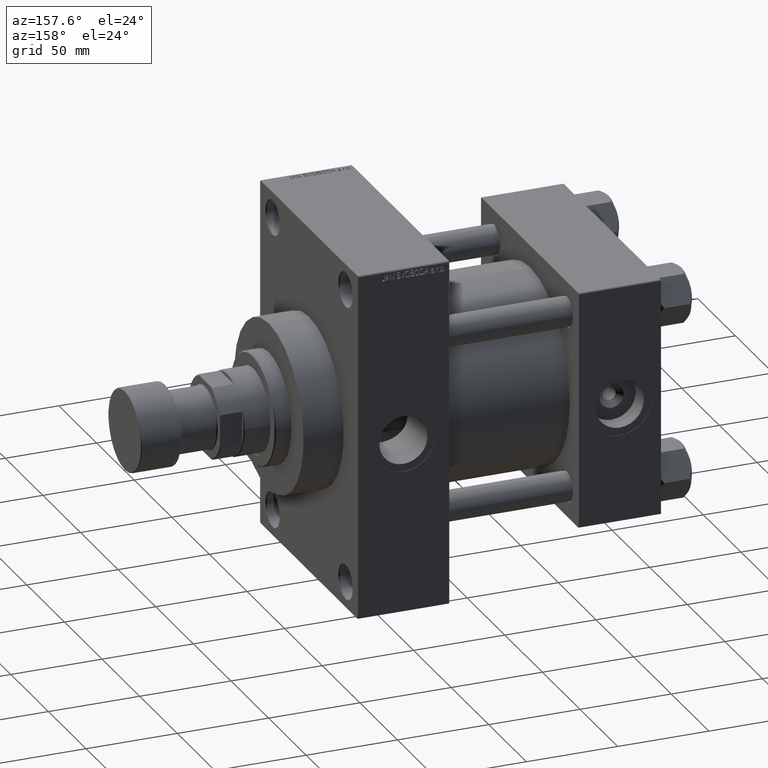
[diagram: clean part render]
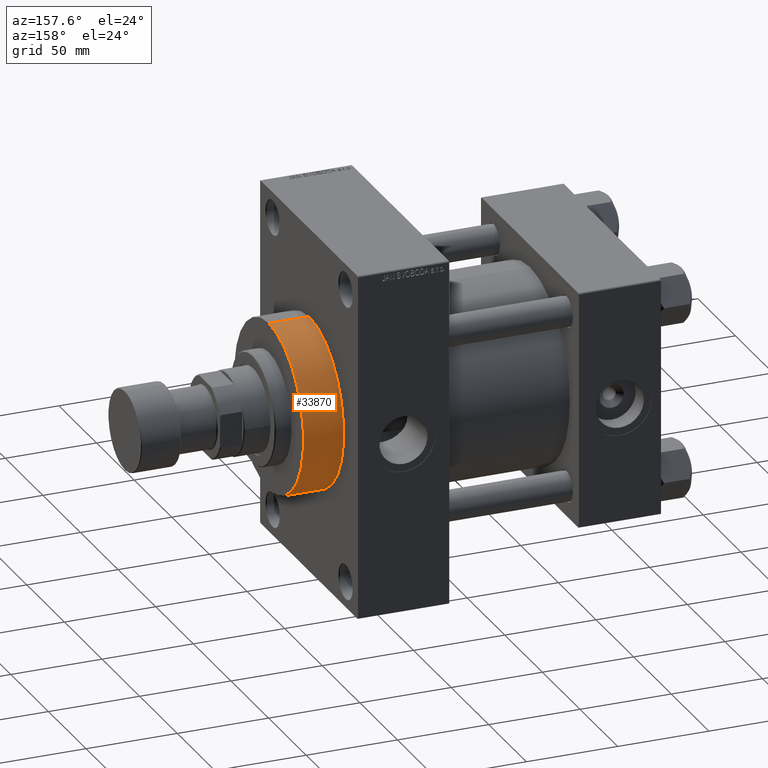
[diagram: same view with one face highlighted and labeled with its STEP entity id]
A machine part, auxiliary view. The second image highlights one B-rep face of the part: STEP entity #33870.
In plain terms, the highlighted cylindrical surface (partial cylindrical patch) has radius 46 mm, axis along (-1, -0, -0).
Its self-contained STEP definition (entity closure, byte-faithful):
#2423 = CARTESIAN_POINT ( 'NONE',  ( 165.9999999999999716, 5.633375276077824704E-15, -46.00000000000000000 ) ) ;
#7862 = AXIS2_PLACEMENT_3D ( 'NONE', #12034, #27043, #42507 ) ;
#8157 = ORIENTED_EDGE ( 'NONE', *, *, #43643, .T. ) ;
#10173 = VECTOR ( 'NONE', #37960, 1000.000000000000000 ) ;
#10289 = CARTESIAN_POINT ( 'NONE',  ( 187.9999999999999716, 0.000000000000000000, 46.00000000000000000 ) ) ;
#10378 = EDGE_LOOP ( 'NONE', ( #35313, #8157, #34875, #11767 ) ) ;
#11767 = ORIENTED_EDGE ( 'NONE', *, *, #18144, .F. ) ;
#12034 = CARTESIAN_POINT ( 'NONE',  ( 187.9999999999999716, 0.000000000000000000, 0.000000000000000000 ) ) ;
#15871 = CARTESIAN_POINT ( 'NONE',  ( 187.9999999999999716, 5.633375276077824704E-15, -46.00000000000000000 ) ) ;
#16208 = DIRECTION ( 'NONE',  ( 1.000000000000000000, 0.000000000000000000, 0.000000000000000000 ) ) ;
#18144 = EDGE_CURVE ( 'NONE', #41666, #35555, #40749, .T. ) ;
#20830 = CIRCLE ( 'NONE', #7862, 46.00000000000000000 ) ;
#21366 = EDGE_CURVE ( 'NONE', #27885, #41666, #20830, .T. ) ;
#22063 = AXIS2_PLACEMENT_3D ( 'NONE', #43363, #16208, #27413 ) ;
#25205 = CARTESIAN_POINT ( 'NONE',  ( 165.9999999999999716, 0.000000000000000000, 46.00000000000000000 ) ) ;
#27043 = DIRECTION ( 'NONE',  ( 1.000000000000000000, 0.000000000000000000, 0.000000000000000000 ) ) ;
#27078 = VERTEX_POINT ( 'NONE', #2423 ) ;
#27413 = DIRECTION ( 'NONE',  ( 0.000000000000000000, 0.000000000000000000, -1.000000000000000000 ) ) ;
#27885 = VERTEX_POINT ( 'NONE', #15871 ) ;
#28468 = VECTOR ( 'NONE', #37521, 1000.000000000000000 ) ;
#29086 = AXIS2_PLACEMENT_3D ( 'NONE', #44884, #41078, #49451 ) ;
#33870 = ADVANCED_FACE ( 'NONE', ( #45135 ), #48702, .T. ) ;
#34875 = ORIENTED_EDGE ( 'NONE', *, *, #47315, .T. ) ;
#35313 = ORIENTED_EDGE ( 'NONE', *, *, #21366, .F. ) ;
#35555 = VERTEX_POINT ( 'NONE', #25205 ) ;
#37521 = DIRECTION ( 'NONE',  ( -1.000000000000000000, -0.000000000000000000, -0.000000000000000000 ) ) ;
#37960 = DIRECTION ( 'NONE',  ( -1.000000000000000000, -0.000000000000000000, -0.000000000000000000 ) ) ;
#40749 = LINE ( 'NONE', #10289, #10173 ) ;
#41057 = CARTESIAN_POINT ( 'NONE',  ( 187.9999999999999716, 5.633375276077824704E-15, -46.00000000000000000 ) ) ;
#41078 = DIRECTION ( 'NONE',  ( -1.000000000000000000, -0.000000000000000000, -0.000000000000000000 ) ) ;
#41666 = VERTEX_POINT ( 'NONE', #43343 ) ;
#42507 = DIRECTION ( 'NONE',  ( 0.000000000000000000, 0.000000000000000000, -1.000000000000000000 ) ) ;
#43343 = CARTESIAN_POINT ( 'NONE',  ( 187.9999999999999716, 0.000000000000000000, 46.00000000000000000 ) ) ;
#43363 = CARTESIAN_POINT ( 'NONE',  ( 165.9999999999999716, 0.000000000000000000, 0.000000000000000000 ) ) ;
#43643 = EDGE_CURVE ( 'NONE', #27885, #27078, #48679, .T. ) ;
#44884 = CARTESIAN_POINT ( 'NONE',  ( 187.9999999999999716, 0.000000000000000000, 0.000000000000000000 ) ) ;
#45135 = FACE_OUTER_BOUND ( 'NONE', #10378, .T. ) ;
#46399 = CIRCLE ( 'NONE', #22063, 46.00000000000000000 ) ;
#47315 = EDGE_CURVE ( 'NONE', #27078, #35555, #46399, .T. ) ;
#48679 = LINE ( 'NONE', #41057, #28468 ) ;
#48702 = CYLINDRICAL_SURFACE ( 'NONE', #29086, 46.00000000000000000 ) ;
#49451 = DIRECTION ( 'NONE',  ( 0.000000000000000000, 0.000000000000000000, 1.000000000000000000 ) ) ;